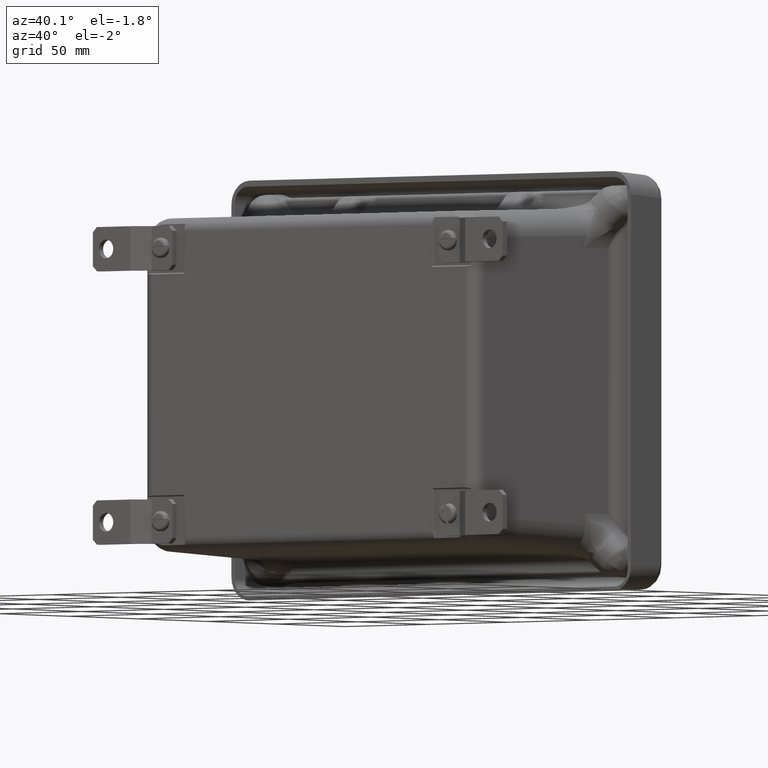
[diagram: clean part render]
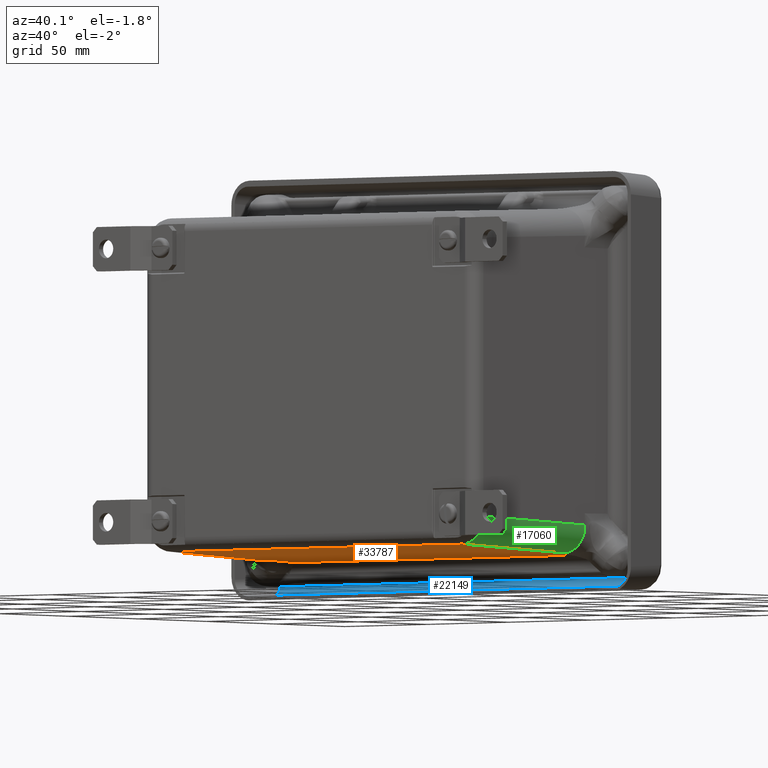
[diagram: same view with three faces highlighted in distinct colors, each labeled with its STEP entity id]
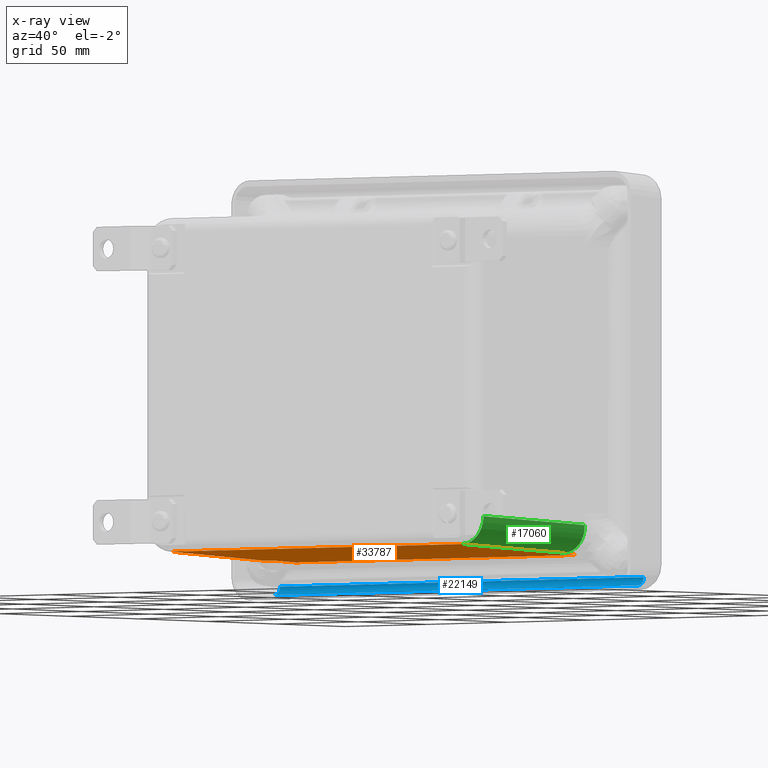
[diagram: x-ray of the same camera — body ghosted, the three highlighted faces saturated]
A machine part, auxiliary view with three faces highlighted in distinct colors.
The next image is the same camera in x-ray (body ghosted, the three faces saturated) — at least one of them is partly hidden behind the body in this view.
Their STEP definitions:

[orange] entity #33787 — the highlighted planar face has unit normal (0, -0.0349, -0.9994).
#86 = VERTEX_POINT ( 'NONE', #41473 ) ;
#426 = VECTOR ( 'NONE', #35611, 39.37007874015748100 ) ;
#752 = VECTOR ( 'NONE', #14874, 39.37007874015748100 ) ;
#2329 = CARTESIAN_POINT ( 'NONE',  ( 7.654683552681750500, -0.8671921480759078300, -6.342107358367079500 ) ) ;
#2557 = ORIENTED_EDGE ( 'NONE', *, *, #23284, .T. ) ;
#4113 = ORIENTED_EDGE ( 'NONE', *, *, #25891, .T. ) ;
#4467 = B_SPLINE_CURVE_WITH_KNOTS ( 'NONE', 3,
 ( #12365, #29068, #42568, #22452, #2329, #25858, #5678 ),
 .UNSPECIFIED., .F., .F.,
 ( 4, 3, 4 ),
 ( 0.0000000000000000000, 0.002997071624512979500, 0.005374582740637530600 ),
 .UNSPECIFIED. ) ;
#4957 = LINE ( 'NONE', #21596, #752 ) ;
#5678 = CARTESIAN_POINT ( 'NONE',  ( 7.717074138106945600, -0.8660063509362024800, -6.342148767315658900 ) ) ;
#6056 = CARTESIAN_POINT ( 'NONE',  ( 0.6185893441271987900, -0.8677884746179319600, -6.342086534185363600 ) ) ;
#7336 = CARTESIAN_POINT ( 'NONE',  ( 0.5250035308253561100, -0.8660063509362019300, -6.342148767315658900 ) ) ;
#7822 = ORIENTED_EDGE ( 'NONE', *, *, #34664, .T. ) ;
#8269 = FACE_OUTER_BOUND ( 'NONE', #41219, .T. ) ;
#8903 = PLANE ( 'NONE',  #15858 ) ;
#9021 = EDGE_CURVE ( 'NONE', #30610, #17380, #4957, .T. ) ;
#9297 = CARTESIAN_POINT ( 'NONE',  ( 0.5561988452847443900, -0.8665981136379691300, -6.342128102506756600 ) ) ;
#9331 = VECTOR ( 'NONE', #15159, 39.37007874015748900 ) ;
#9443 = CARTESIAN_POINT ( 'NONE',  ( 0.6972381852496304400, -0.8692955659249599300, -6.342033905397227200 ) ) ;
#9547 = CARTESIAN_POINT ( 'NONE',  ( -0.04077956553384607500, -0.2388208444816549400, -6.364050567815123600 ) ) ;
#10233 = ORIENTED_EDGE ( 'NONE', *, *, #39754, .T. ) ;
#10406 = LINE ( 'NONE', #21742, #9331 ) ;
#11018 = VERTEX_POINT ( 'NONE', #39333 ) ;
#12349 = ORIENTED_EDGE ( 'NONE', *, *, #21454, .T. ) ;
#12365 = CARTESIAN_POINT ( 'NONE',  ( 7.505515169239277600, -0.8700546158680204600, -6.342007398789133000 ) ) ;
#13294 = EDGE_CURVE ( 'NONE', #22974, #33815, #37482, .T. ) ;
#14089 = VERTEX_POINT ( 'NONE', #24472 ) ;
#14874 = DIRECTION ( 'NONE',  ( -0.03487826274237468300, -0.9987827659587182900, 0.03487826274237469000 ) ) ;
#15159 = DIRECTION ( 'NONE',  ( 0.01445433466142407100, -0.9992864213068273200, 0.03489585077468929800 ) ) ;
#15517 = LINE ( 'NONE', #37884, #31271 ) ;
#15858 = AXIS2_PLACEMENT_3D ( 'NONE', #25369, #39146, #19024 ) ;
#16103 = LINE ( 'NONE', #41558, #42895 ) ;
#16753 = VECTOR ( 'NONE', #29664, 39.37007874015748100 ) ;
#16794 = ORIENTED_EDGE ( 'NONE', *, *, #9021, .T. ) ;
#17380 = VERTEX_POINT ( 'NONE', #36471 ) ;
#17935 = DIRECTION ( 'NONE',  ( -0.03487826274237471700, 0.9987827659587182900, -0.03487826274237469000 ) ) ;
#18230 = DIRECTION ( 'NONE',  ( 0.01445433466142406200, 0.9992864213068273200, -0.03489585077468929800 ) ) ;
#18325 = LINE ( 'NONE', #29018, #426 ) ;
#19024 = DIRECTION ( 'NONE',  ( 0.0000000000000000000, 0.9993908270190957600, -0.03489949670250104600 ) ) ;
#20768 = ORIENTED_EDGE ( 'NONE', *, *, #13294, .T. ) ;
#21153 = VERTEX_POINT ( 'NONE', #26640 ) ;
#21454 = EDGE_CURVE ( 'NONE', #86, #11018, #10406, .T. ) ;
#21596 = CARTESIAN_POINT ( 'NONE',  ( 7.737938963687611200, -0.2685159209044150600, -6.363013592896325400 ) ) ;
#21742 = CARTESIAN_POINT ( 'NONE',  ( 7.492838223614693800, 0.006353736575849752000, -6.372612252845468300 ) ) ;
#22452 = CARTESIAN_POINT ( 'NONE',  ( 7.623488325452021800, -0.8677884746055646300, -6.342086534185796200 ) ) ;
#22974 = VERTEX_POINT ( 'NONE', #7336 ) ;
#23284 = EDGE_CURVE ( 'NONE', #11018, #30610, #4467, .T. ) ;
#24472 = CARTESIAN_POINT ( 'NONE',  ( 0.7456930792612750400, -0.2388208444816546600, -6.364050567815123600 ) ) ;
#25369 = CARTESIAN_POINT ( 'NONE',  ( -0.04077956553384607500, 0.002792066518874055400, -6.372487876586403900 ) ) ;
#25709 = LINE ( 'NONE', #9547, #16753 ) ;
#25858 = CARTESIAN_POINT ( 'NONE',  ( 7.685878823863197900, -0.8665981136338794000, -6.342128102506899600 ) ) ;
#25891 = EDGE_CURVE ( 'NONE', #21153, #22974, #15517, .T. ) ;
#26194 = CARTESIAN_POINT ( 'NONE',  ( 0.5873941166818316100, -0.8671921480841212600, -6.342107358366791700 ) ) ;
#26640 = CARTESIAN_POINT ( 'NONE',  ( 0.6217345397383480200, -3.636020022480598100, -6.245417758402668400 ) ) ;
#29018 = CARTESIAN_POINT ( 'NONE',  ( -0.04077956553384607500, -3.636020022480598500, -6.245417758402668400 ) ) ;
#29068 = CARTESIAN_POINT ( 'NONE',  ( 7.544839483898313000, -0.8692955659207969300, -6.342033905397372000 ) ) ;
#29574 = CARTESIAN_POINT ( 'NONE',  ( 0.6579137994579564700, -0.8685401990983018200, -6.342060283388063300 ) ) ;
#29664 = DIRECTION ( 'NONE',  ( 1.000000000000000000, -0.0000000000000000000, -0.0000000000000000000 ) ) ;
#30610 = VERTEX_POINT ( 'NONE', #39967 ) ;
#31271 = VECTOR ( 'NONE', #17935, 39.37007874015748100 ) ;
#31729 = ORIENTED_EDGE ( 'NONE', *, *, #40018, .T. ) ;
#32509 = CARTESIAN_POINT ( 'NONE',  ( 0.7365624996930273400, -0.8700546158680210200, -6.342007398789133000 ) ) ;
#32771 = CARTESIAN_POINT ( 'NONE',  ( 0.5250035308253561100, -0.8660063509362019300, -6.342148767315658900 ) ) ;
#32913 = CARTESIAN_POINT ( 'NONE',  ( 0.7365624996930273400, -0.8700546158680210200, -6.342007398789133000 ) ) ;
#33787 = ADVANCED_FACE ( 'NONE', ( #8269 ), #8903, .T. ) ;
#33815 = VERTEX_POINT ( 'NONE', #32509 ) ;
#34664 = EDGE_CURVE ( 'NONE', #33815, #14089, #16103, .T. ) ;
#35611 = DIRECTION ( 'NONE',  ( -1.000000000000000000, 0.0000000000000000000, 0.0000000000000000000 ) ) ;
#36471 = CARTESIAN_POINT ( 'NONE',  ( 7.620343129193955200, -3.636020022480597200, -6.245417758402668400 ) ) ;
#37482 = B_SPLINE_CURVE_WITH_KNOTS ( 'NONE', 3,
 ( #32771, #9297, #26194, #6056, #29574, #9443, #32913 ),
 .UNSPECIFIED., .F., .F.,
 ( 4, 3, 4 ),
 ( 0.0000000000000000000, 0.002377511136458876000, 0.005374582749453000700 ),
 .UNSPECIFIED. ) ;
#37884 = CARTESIAN_POINT ( 'NONE',  ( 0.4940130575789523600, 0.02144469030523401800, -6.373139240562062800 ) ) ;
#39146 = DIRECTION ( 'NONE',  ( 0.0000000000000000000, -0.03489949670250104600, -0.9993908270190957600 ) ) ;
#39333 = CARTESIAN_POINT ( 'NONE',  ( 7.505515169239277600, -0.8700546158680204600, -6.342007398789133000 ) ) ;
#39754 = EDGE_CURVE ( 'NONE', #14089, #86, #25709, .T. ) ;
#39967 = CARTESIAN_POINT ( 'NONE',  ( 7.717074138106945600, -0.8660063509362024800, -6.342148767315658900 ) ) ;
#40018 = EDGE_CURVE ( 'NONE', #17380, #21153, #18325, .T. ) ;
#41219 = EDGE_LOOP ( 'NONE', ( #12349, #2557, #16794, #31729, #4113, #20768, #7822, #10233 ) ) ;
#41473 = CARTESIAN_POINT ( 'NONE',  ( 7.496384589671029300, -0.2388208444816546600, -6.364050567815123600 ) ) ;
#41558 = CARTESIAN_POINT ( 'NONE',  ( 0.7492394453176103300, 0.006353736575849752000, -6.372612252845468300 ) ) ;
#42568 = CARTESIAN_POINT ( 'NONE',  ( 7.584163869905625100, -0.8685401990900165600, -6.342060283388353700 ) ) ;
#42895 = VECTOR ( 'NONE', #18230, 39.37007874015748900 ) ;

[blue] entity #22149 — the highlighted cylindrical surface (edge-blend (fillet) strip) has radius 3.9624 mm, axis along (-1, 0, -0).
#349 = CYLINDRICAL_SURFACE ( 'NONE', #17366, 0.1560000000000001900 ) ;
#1397 = FACE_OUTER_BOUND ( 'NONE', #13333, .T. ) ;
#2583 = LINE ( 'NONE', #15861, #17300 ) ;
#4159 = DIRECTION ( 'NONE',  ( -1.094490382077027200E-016, 0.0000000000000000000, 1.000000000000000000 ) ) ;
#4695 = CIRCLE ( 'NONE', #18294, 0.1560000000000001900 ) ;
#6442 = ORIENTED_EDGE ( 'NONE', *, *, #22521, .F. ) ;
#11275 = CARTESIAN_POINT ( 'NONE',  ( 0.1250000000000026100, -0.2810000000000000300, -7.438961527592479900 ) ) ;
#12197 = CARTESIAN_POINT ( 'NONE',  ( 0.4288246798292361700, -0.2728355908261006500, -7.594747735014193400 ) ) ;
#12202 = DIRECTION ( 'NONE',  ( 1.000000000000000000, -0.0000000000000000000, 1.170206893837765700E-016 ) ) ;
#12643 = DIRECTION ( 'NONE',  ( -1.000000000000000000, -5.219204900824829600E-034, -1.170206893837765700E-016 ) ) ;
#13333 = EDGE_LOOP ( 'NONE', ( #31642, #43519, #6442, #30107 ) ) ;
#14012 = DIRECTION ( 'NONE',  ( 1.000000000000000000, -0.0000000000000000000, 0.0000000000000000000 ) ) ;
#15861 = CARTESIAN_POINT ( 'NONE',  ( 9.462999999999999200, -0.2728355908261007600, -7.594747735014192500 ) ) ;
#17300 = VECTOR ( 'NONE', #12643, 39.37007874015748100 ) ;
#17366 = AXIS2_PLACEMENT_3D ( 'NONE', #11275, #34726, #4159 ) ;
#17929 = VERTEX_POINT ( 'NONE', #37719 ) ;
#18294 = AXIS2_PLACEMENT_3D ( 'NONE', #19906, #43405, #23274 ) ;
#19155 = VERTEX_POINT ( 'NONE', #36047 ) ;
#19829 = EDGE_CURVE ( 'NONE', #19155, #41361, #2583, .T. ) ;
#19906 = CARTESIAN_POINT ( 'NONE',  ( 9.159175320170764000, -0.2810000000000000300, -7.438961527592477200 ) ) ;
#22149 = ADVANCED_FACE ( 'NONE', ( #1397 ), #349, .F. ) ;
#22521 = EDGE_CURVE ( 'NONE', #41361, #17929, #43439, .T. ) ;
#23073 = VERTEX_POINT ( 'NONE', #27782 ) ;
#23274 = DIRECTION ( 'NONE',  ( 0.0000000000000000000, 0.0000000000000000000, -1.000000000000000000 ) ) ;
#24658 = EDGE_CURVE ( 'NONE', #17929, #23073, #37544, .T. ) ;
#27782 = CARTESIAN_POINT ( 'NONE',  ( 9.159175320170764000, -0.1250000000000000300, -7.438961527592479000 ) ) ;
#30107 = ORIENTED_EDGE ( 'NONE', *, *, #19829, .F. ) ;
#30712 = VECTOR ( 'NONE', #12202, 39.37007874015748100 ) ;
#31642 = ORIENTED_EDGE ( 'NONE', *, *, #31663, .T. ) ;
#31663 = EDGE_CURVE ( 'NONE', #19155, #23073, #4695, .T. ) ;
#34091 = CARTESIAN_POINT ( 'NONE',  ( 0.4288246798292361700, -0.2809999999999999700, -7.438961527592479900 ) ) ;
#34726 = DIRECTION ( 'NONE',  ( -1.000000000000000000, 0.0000000000000000000, -1.170206893837765700E-016 ) ) ;
#35641 = CARTESIAN_POINT ( 'NONE',  ( 0.1250000000000026100, -0.1250000000000000300, -7.438961527592479900 ) ) ;
#36047 = CARTESIAN_POINT ( 'NONE',  ( 9.159175320170764000, -0.2728355908261008200, -7.594747735014192500 ) ) ;
#37491 = DIRECTION ( 'NONE',  ( 0.0000000000000000000, 0.0000000000000000000, -1.000000000000000000 ) ) ;
#37544 = LINE ( 'NONE', #35641, #30712 ) ;
#37719 = CARTESIAN_POINT ( 'NONE',  ( 0.4288246798292361700, -0.1250000000000000300, -7.438961527592479900 ) ) ;
#41361 = VERTEX_POINT ( 'NONE', #12197 ) ;
#43405 = DIRECTION ( 'NONE',  ( 1.000000000000000000, -0.0000000000000000000, 0.0000000000000000000 ) ) ;
#43439 = CIRCLE ( 'NONE', #43539, 0.1560000000000001900 ) ;
#43519 = ORIENTED_EDGE ( 'NONE', *, *, #24658, .F. ) ;
#43539 = AXIS2_PLACEMENT_3D ( 'NONE', #34091, #14012, #37491 ) ;

[green] entity #17060 — the highlighted cylindrical surface (edge-blend (fillet) strip) has radius 12.7178 mm, axis along (0.0349, 0.9988, -0.0349).
#29 = LINE ( 'NONE', #12857, #8982 ) ;
#752 = VECTOR ( 'NONE', #14874, 39.37007874015748100 ) ;
#2218 = VERTEX_POINT ( 'NONE', #12953 ) ;
#3010 = CARTESIAN_POINT ( 'NONE',  ( 7.725319469906674300, -0.8655180382176426200, -6.342165819571543600 ) ) ;
#3151 = CARTESIAN_POINT ( 'NONE',  ( 8.048189452678581500, -0.8559458743978787300, -6.219111364324590800 ) ) ;
#3283 = ORIENTED_EDGE ( 'NONE', *, *, #17250, .T. ) ;
#3302 = CARTESIAN_POINT ( 'NONE',  ( 8.217295191021962700, -0.8651797590184399100, -5.858239232714867100 ) ) ;
#4519 = VERTEX_POINT ( 'NONE', #32205 ) ;
#4957 = LINE ( 'NONE', #21596, #752 ) ;
#5334 = FACE_OUTER_BOUND ( 'NONE', #27011, .T. ) ;
#6378 = CARTESIAN_POINT ( 'NONE',  ( 7.749938675170512600, -0.8644324732274375500, -6.341195340066677000 ) ) ;
#6491 = DIRECTION ( 'NONE',  ( 0.03487826274237467600, 0.9987827659587182900, -0.03487826274237469700 ) ) ;
#6525 = CARTESIAN_POINT ( 'NONE',  ( 8.115531375762676800, -0.8561567488910597500, -6.147075476964031000 ) ) ;
#6664 = CARTESIAN_POINT ( 'NONE',  ( 8.217469125195409100, -0.8660063509362024800, -5.841753780227199000 ) ) ;
#8424 = CARTESIAN_POINT ( 'NONE',  ( 8.120738116282417700, -3.636020022480597200, -5.745022771314207700 ) ) ;
#8488 = ORIENTED_EDGE ( 'NONE', *, *, #19178, .T. ) ;
#8982 = VECTOR ( 'NONE', #6491, 39.37007874015748100 ) ;
#9021 = EDGE_CURVE ( 'NONE', #30610, #17380, #4957, .T. ) ;
#9795 = CARTESIAN_POINT ( 'NONE',  ( 7.782548994321682100, -0.8630042693882361600, -6.338238939850199000 ) ) ;
#9946 = CARTESIAN_POINT ( 'NONE',  ( 8.151010697970564300, -0.8570879107108526600, -6.092413617298554100 ) ) ;
#10489 = CARTESIAN_POINT ( 'NONE',  ( 7.974086651272160400, -3.639631525390967700, -6.098766293392410300 ) ) ;
#10576 = VERTEX_POINT ( 'NONE', #8424 ) ;
#12397 =( BOUNDED_CURVE ( )  B_SPLINE_CURVE ( 3, ( #12423, #25775, #19146, #42625 ),
 .UNSPECIFIED., .F., .F. ) 
 B_SPLINE_CURVE_WITH_KNOTS ( ( 4, 4 ),
 ( 1.568616533210455100E-015, 0.7847891758118390500 ),
 .UNSPECIFIED. ) 
 CURVE ( )  GEOMETRIC_REPRESENTATION_ITEM ( )  RATIONAL_B_SPLINE_CURVE ( ( 1.000000000000000000, 0.9493306762732177700, 0.9493306762732177700, 1.000000000000000000 ) ) 
 REPRESENTATION_ITEM ( '' )  );
#12423 = CARTESIAN_POINT ( 'NONE',  ( 7.974086651272160400, -3.639631525390967700, -6.098766293392410300 ) ) ;
#12857 = CARTESIAN_POINT ( 'NONE',  ( 8.240618068843115700, -0.2031073374084944600, -5.864902723874906500 ) ) ;
#12953 = CARTESIAN_POINT ( 'NONE',  ( 7.974086651272160400, -3.639631525390967700, -6.098766293392410300 ) ) ;
#13186 = CARTESIAN_POINT ( 'NONE',  ( 7.830917968299652400, -0.8610902170855292400, -6.329526019686670500 ) ) ;
#13339 = CARTESIAN_POINT ( 'NONE',  ( 8.173508506976240500, -0.8581365092775303800, -6.048459465180905600 ) ) ;
#13357 = EDGE_CURVE ( 'NONE', #10576, #4519, #29, .T. ) ;
#14874 = DIRECTION ( 'NONE',  ( -0.03487826274237468300, -0.9987827659587182900, 0.03487826274237469000 ) ) ;
#16539 = CARTESIAN_POINT ( 'NONE',  ( 7.878432698546626000, -0.8594573069668296500, -6.316032772195271100 ) ) ;
#16681 = CARTESIAN_POINT ( 'NONE',  ( 8.201623728623999900, -0.8604622096851767300, -5.971843939400213400 ) ) ;
#17060 = ADVANCED_FACE ( 'NONE', ( #5334 ), #31129, .T. ) ;
#17121 = DIRECTION ( 'NONE',  ( 0.0000000000000000000, 0.03489949670250108700, 0.9993908270190957600 ) ) ;
#17250 = EDGE_CURVE ( 'NONE', #2218, #17380, #12397, .T. ) ;
#17380 = VERTEX_POINT ( 'NONE', #36471 ) ;
#19146 = CARTESIAN_POINT ( 'NONE',  ( 7.754801908935036200, -3.638363437954688500, -6.245335924531072900 ) ) ;
#19178 = EDGE_CURVE ( 'NONE', #30610, #4519, #30130, .T. ) ;
#19914 = CARTESIAN_POINT ( 'NONE',  ( 7.938996849149776700, -0.8577065830977569400, -6.291898857343077200 ) ) ;
#20067 = CARTESIAN_POINT ( 'NONE',  ( 8.213523274326910000, -0.8629911389021376300, -5.907536751486299300 ) ) ;
#21596 = CARTESIAN_POINT ( 'NONE',  ( 7.737938963687611200, -0.2685159209044150600, -6.363013592896325400 ) ) ;
#21658 = AXIS2_PLACEMENT_3D ( 'NONE', #40608, #27271, #17121 ) ;
#23283 = CARTESIAN_POINT ( 'NONE',  ( 8.022712141101044000, -0.8561514788088932000, -6.240003440806329000 ) ) ;
#23432 = CARTESIAN_POINT ( 'NONE',  ( 8.216511244107625300, -0.8644289666272491100, -5.874695851811796200 ) ) ;
#23839 = CARTESIAN_POINT ( 'NONE',  ( 8.120656282410822200, -3.638363437954688100, -5.879481551055289600 ) ) ;
#24689 = ORIENTED_EDGE ( 'NONE', *, *, #25439, .T. ) ;
#25439 = EDGE_CURVE ( 'NONE', #10576, #2218, #39201, .T. ) ;
#25775 = CARTESIAN_POINT ( 'NONE',  ( 7.879009953936067800, -3.639631525390968100, -6.193842990728504600 ) ) ;
#26550 = CARTESIAN_POINT ( 'NONE',  ( 7.733544118791075800, -0.8651804957756893400, -6.341974805536835000 ) ) ;
#26687 = CARTESIAN_POINT ( 'NONE',  ( 8.094871932935314300, -0.8559486043085349200, -6.172366414285138900 ) ) ;
#26826 = CARTESIAN_POINT ( 'NONE',  ( 8.217486176290828200, -0.8655180714490420300, -5.849998550903058500 ) ) ;
#27011 = EDGE_LOOP ( 'NONE', ( #37806, #8488, #43319, #24689, #3283 ) ) ;
#27271 = DIRECTION ( 'NONE',  ( 0.03487826274237469000, 0.9987827659587184000, -0.03487826274237470400 ) ) ;
#29901 = CARTESIAN_POINT ( 'NONE',  ( 7.758110315040484700, -0.8640677943209121900, -6.340605344098638500 ) ) ;
#30054 = CARTESIAN_POINT ( 'NONE',  ( 8.142629188996899400, -0.8568126625119543100, -6.106422801591623500 ) ) ;
#30130 = B_SPLINE_CURVE_WITH_KNOTS ( 'NONE', 3,
 ( #43266, #3010, #26550, #6378, #29901, #9795, #33258, #13186, #36646, #16539, #40022, #19914, #43412, #23283, #3151, #26687, #6525, #30054, #9946, #33397, #13339, #36794, #16681, #40167, #20067, #43549, #23432, #3302, #26826, #6664 ),
 .UNSPECIFIED., .F., .F.,
 ( 4, 2, 2, 2, 2, 2, 2, 2, 2, 2, 2, 2, 2, 2, 4 ),
 ( 0.0000000000000000000, 0.0006238960146488172900, 0.001247792029297634600, 0.002495584058595178100, 0.003743376087892721800, 0.004991168117190265100, 0.007486752175785384700, 0.009982336234380504200, 0.01247792029297562100, 0.01372571232227321800, 0.01497350435157081100, 0.01746908841016592300, 0.01871688043946347100, 0.01934077645411224100, 0.01996467246876100800 ),
 .UNSPECIFIED. ) ;
#30589 = CARTESIAN_POINT ( 'NONE',  ( 8.069163348608253000, -3.639631525390966800, -6.003689596056318600 ) ) ;
#30610 = VERTEX_POINT ( 'NONE', #39967 ) ;
#31129 = CYLINDRICAL_SURFACE ( 'NONE', #21658, 0.5006999999999993700 ) ;
#32205 = CARTESIAN_POINT ( 'NONE',  ( 8.217469125195409100, -0.8660063509362024800, -5.841753780227199000 ) ) ;
#33258 = CARTESIAN_POINT ( 'NONE',  ( 7.798739986400581100, -0.8623361307516164100, -6.335867536415848100 ) ) ;
#33397 = CARTESIAN_POINT ( 'NONE',  ( 8.166443619384393700, -0.8577490373656278000, -6.063458950116439500 ) ) ;
#36471 = CARTESIAN_POINT ( 'NONE',  ( 7.620343129193955200, -3.636020022480597200, -6.245417758402668400 ) ) ;
#36646 = CARTESIAN_POINT ( 'NONE',  ( 7.846982954728024300, -0.8605099722483997600, -6.325529684865192500 ) ) ;
#36794 = CARTESIAN_POINT ( 'NONE',  ( 8.192234982656200900, -0.8594229953972805100, -6.003013020083204600 ) ) ;
#37806 = ORIENTED_EDGE ( 'NONE', *, *, #9021, .F. ) ;
#39201 =( BOUNDED_CURVE ( )  B_SPLINE_CURVE ( 3, ( #40417, #23839, #30589, #10489 ),
 .UNSPECIFIED., .F., .F. ) 
 B_SPLINE_CURVE_WITH_KNOTS ( ( 4, 4 ),
 ( 5.498396131367753600, 6.283185307179588000 ),
 .UNSPECIFIED. ) 
 CURVE ( )  GEOMETRIC_REPRESENTATION_ITEM ( )  RATIONAL_B_SPLINE_CURVE ( ( 1.000000000000000000, 0.9493306762732182100, 0.9493306762732182100, 1.000000000000000000 ) ) 
 REPRESENTATION_ITEM ( '' )  );
#39967 = CARTESIAN_POINT ( 'NONE',  ( 7.717074138106945600, -0.8660063509362024800, -6.342148767315658900 ) ) ;
#40022 = CARTESIAN_POINT ( 'NONE',  ( 7.893820559631987700, -0.8589841767150681000, -6.310542436304760200 ) ) ;
#40167 = CARTESIAN_POINT ( 'NONE',  ( 8.211123032590940300, -0.8623208520086197400, -5.923800973030701300 ) ) ;
#40417 = CARTESIAN_POINT ( 'NONE',  ( 8.120738116282417700, -3.636020022480597200, -5.745022771314207700 ) ) ;
#40608 = CARTESIAN_POINT ( 'NONE',  ( 7.740223081754655800, -0.1856331594095522200, -5.864902723874906500 ) ) ;
#42625 = CARTESIAN_POINT ( 'NONE',  ( 7.620343129193955200, -3.636020022480597200, -6.245417758402668400 ) ) ;
#43266 = CARTESIAN_POINT ( 'NONE',  ( 7.717074138106945600, -0.8660063509362024800, -6.342148767315658900 ) ) ;
#43319 = ORIENTED_EDGE ( 'NONE', *, *, #13357, .F. ) ;
#43412 = CARTESIAN_POINT ( 'NONE',  ( 7.967807632320638200, -0.8570376731362435700, -6.276594554603594400 ) ) ;
#43549 = CARTESIAN_POINT ( 'NONE',  ( 8.215916749834884000, -0.8640622670488662400, -5.882913826646070100 ) ) ;